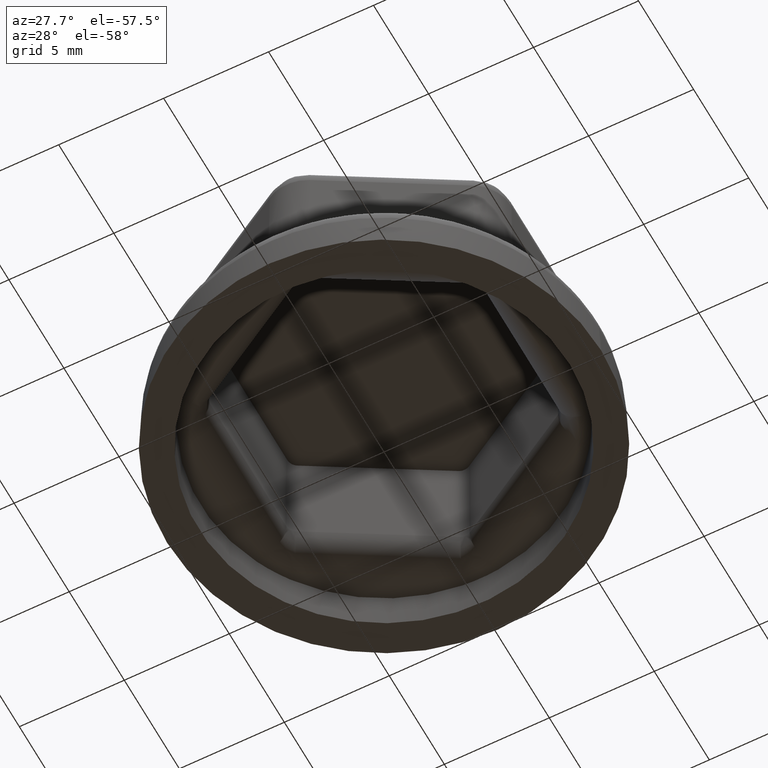
[diagram: clean part render]
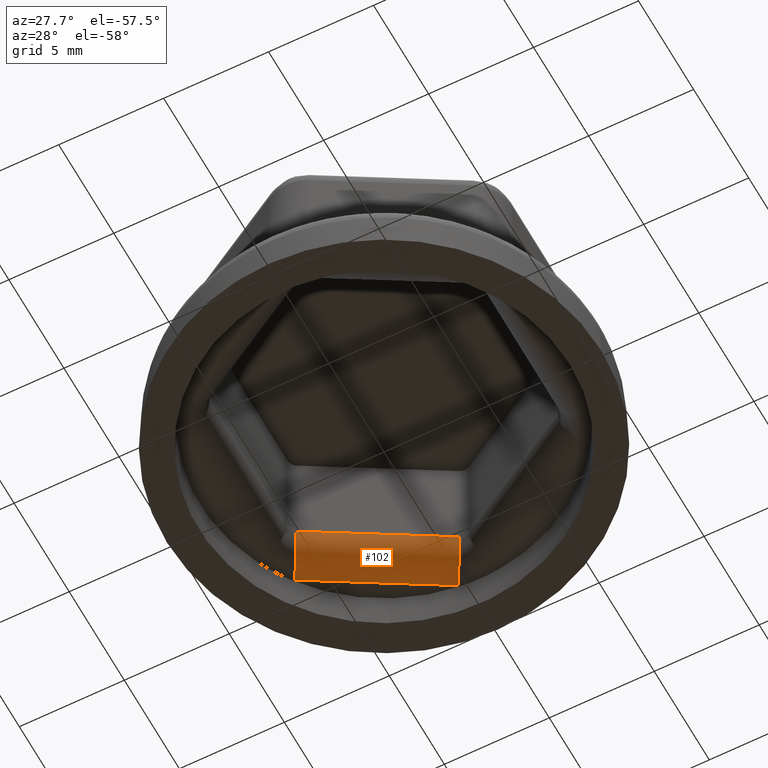
[diagram: same view with one face highlighted and labeled with its STEP entity id]
A machine part, auxiliary view. The second image highlights one B-rep face of the part: STEP entity #102.
In plain terms, the highlighted cylindrical surface (edge-blend (fillet) strip) has radius 1.5 mm, axis along (-0.866, -0.5, 0).
Its self-contained STEP definition (entity closure, byte-faithful):
#102 = ADVANCED_FACE( '', ( #238 ), #239, .T. );
#238 = FACE_OUTER_BOUND( '', #960, .T. );
#239 = CYLINDRICAL_SURFACE( '', #961, 1.50000000000000 );
#960 = EDGE_LOOP( '', ( #4077, #4078, #4079, #4080 ) );
#961 = AXIS2_PLACEMENT_3D( '', #4081, #4082, #4083 );
#4077 = ORIENTED_EDGE( '', *, *, #4633, .T. );
#4078 = ORIENTED_EDGE( '', *, *, #4634, .T. );
#4079 = ORIENTED_EDGE( '', *, *, #4635, .T. );
#4080 = ORIENTED_EDGE( '', *, *, #4636, .T. );
#4081 = CARTESIAN_POINT( '', ( 2.51297705266323, 10.6585030654629, 3.30000000000000 ) );
#4082 = DIRECTION( '', ( -0.866025403784439, -0.500000000000000, 0.000000000000000 ) );
#4083 = DIRECTION( '', ( -0.500000000000000, 0.866025403784439, 0.000000000000000 ) );
#4633 = EDGE_CURVE( '', #4946, #4893, #4947, .T. );
#4634 = EDGE_CURVE( '', #4893, #4930, #4948, .T. );
#4635 = EDGE_CURVE( '', #4930, #4949, #4950, .T. );
#4636 = EDGE_CURVE( '', #4949, #4946, #4951, .T. );
#4893 = VERTEX_POINT( '', #5473 );
#4930 = VERTEX_POINT( '', #5534 );
#4946 = VERTEX_POINT( '', #5573 );
#4947 = CIRCLE( '', #5574, 1.50000000000000 );
#4948 = LINE( '', #5575, #5576 );
#4949 = VERTEX_POINT( '', #5577 );
#4950 = CIRCLE( '', #5578, 1.50000000000000 );
#4951 = LINE( '', #5579, #5580 );
#5473 = CARTESIAN_POINT( '', ( -0.249961923789095, 7.33153249581209, 3.27382139034408 ) );
#5534 = CARTESIAN_POINT( '', ( -6.22431242814985, 3.88223962388623, 3.27382139034407 ) );
#5573 = CARTESIAN_POINT( '', ( -0.999847695156388, 8.63037275169322, 1.80000000000000 ) );
#5574 = AXIS2_PLACEMENT_3D( '', #7101, #7102, #7103 );
#5575 = CARTESIAN_POINT( '', ( 3.26286282403053, 9.35966280958173, 3.27382139034407 ) );
#5576 = VECTOR( '', #7104, 1000.00000000000 );
#5577 = CARTESIAN_POINT( '', ( -6.97419819951715, 5.18107987976736, 1.80000000000000 ) );
#5578 = AXIS2_PLACEMENT_3D( '', #7105, #7106, #7107 );
#5579 = CARTESIAN_POINT( '', ( -3.98702294733677, 6.90572631573029, 1.80000000000000 ) );
#5580 = VECTOR( '', #7108, 1000.00000000000 );
#7101 = CARTESIAN_POINT( '', ( -0.999847695156388, 8.63037275169322, 3.30000000000000 ) );
#7102 = DIRECTION( '', ( -0.866025403784439, -0.500000000000000, 0.000000000000000 ) );
#7103 = DIRECTION( '', ( 0.500000000000000, -0.866025403784439, 0.000000000000000 ) );
#7104 = DIRECTION( '', ( -0.866025403784439, -0.500000000000000, 8.67361737988403E-019 ) );
#7105 = CARTESIAN_POINT( '', ( -6.97419819951715, 5.18107987976736, 3.30000000000000 ) );
#7106 = DIRECTION( '', ( 0.866025403784439, 0.500000000000000, -2.08055575739610E-015 ) );
#7107 = DIRECTION( '', ( -0.500000000000000, 0.866025403784439, 0.000000000000000 ) );
#7108 = DIRECTION( '', ( 0.866025403784439, 0.500000000000000, 0.000000000000000 ) );